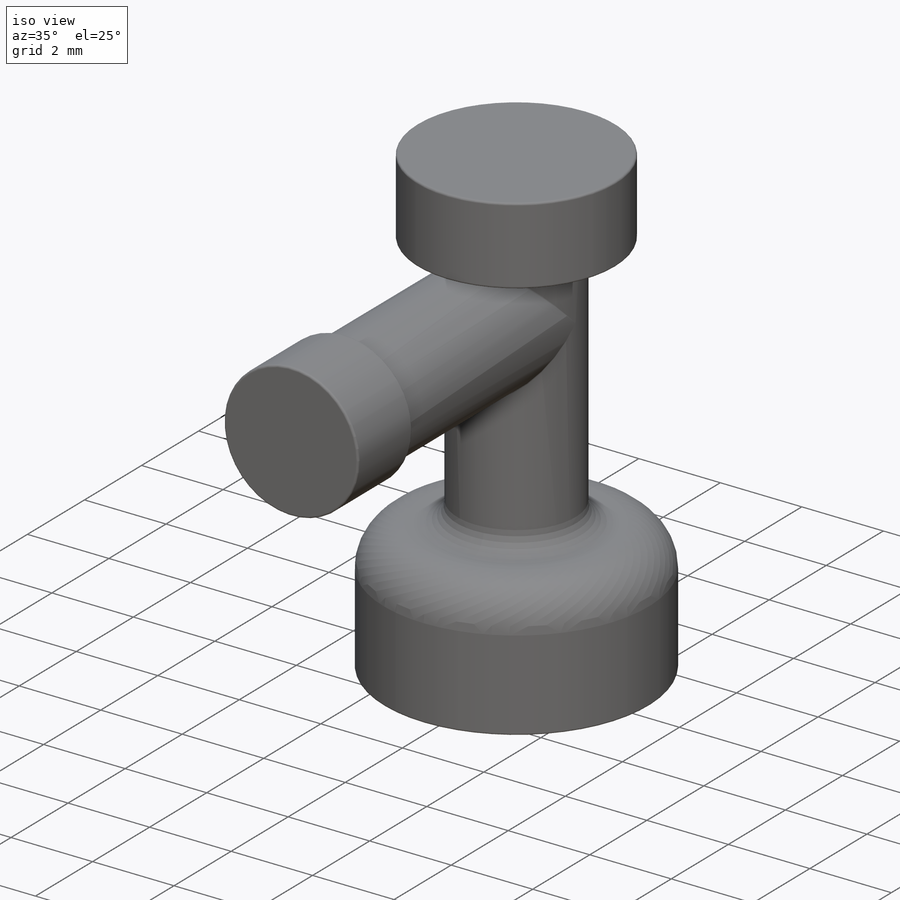
[diagram: iso view]
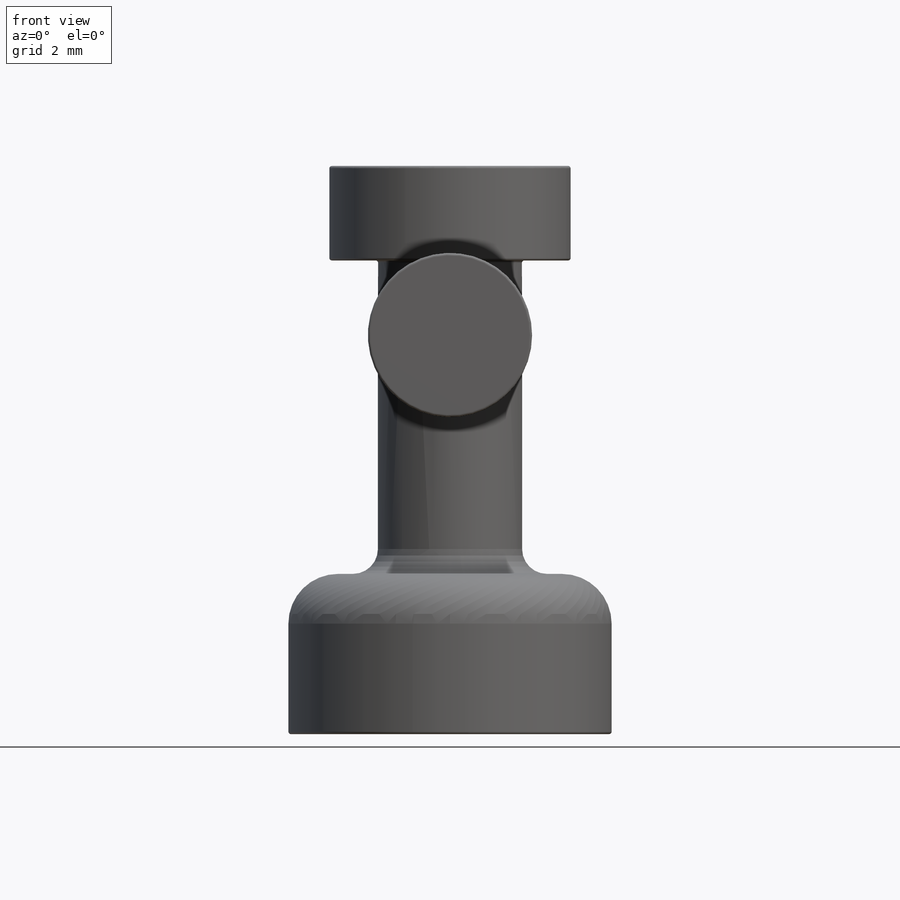
[diagram: front view]
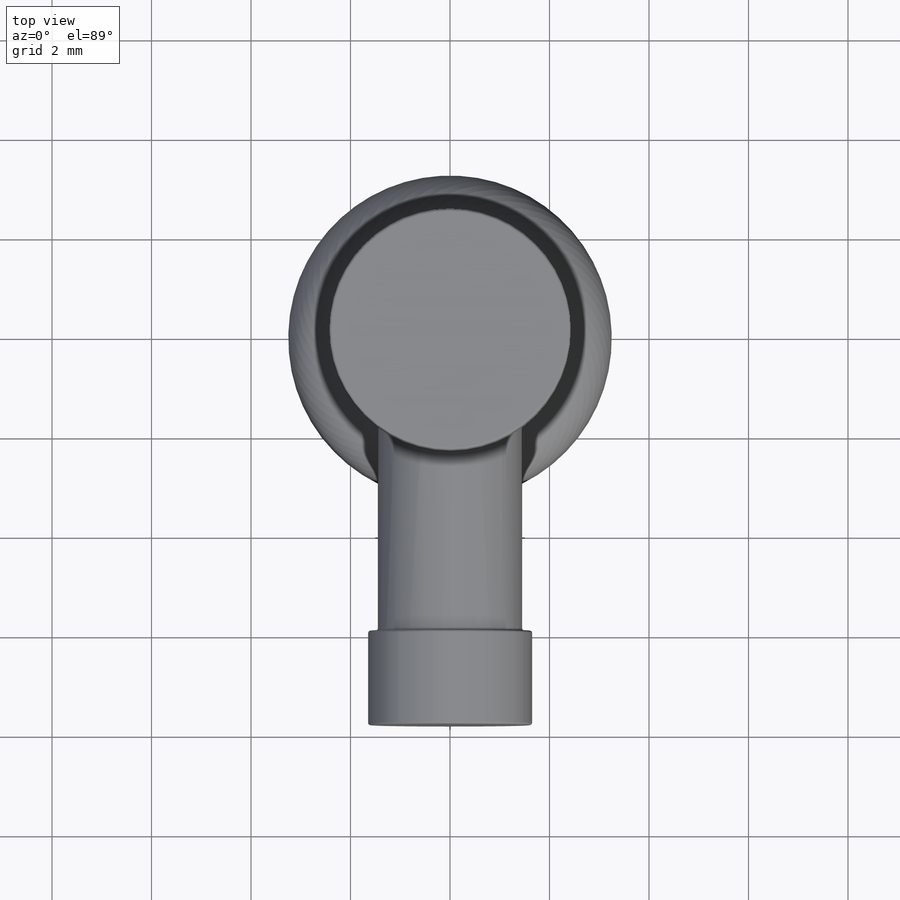
[diagram: top view]
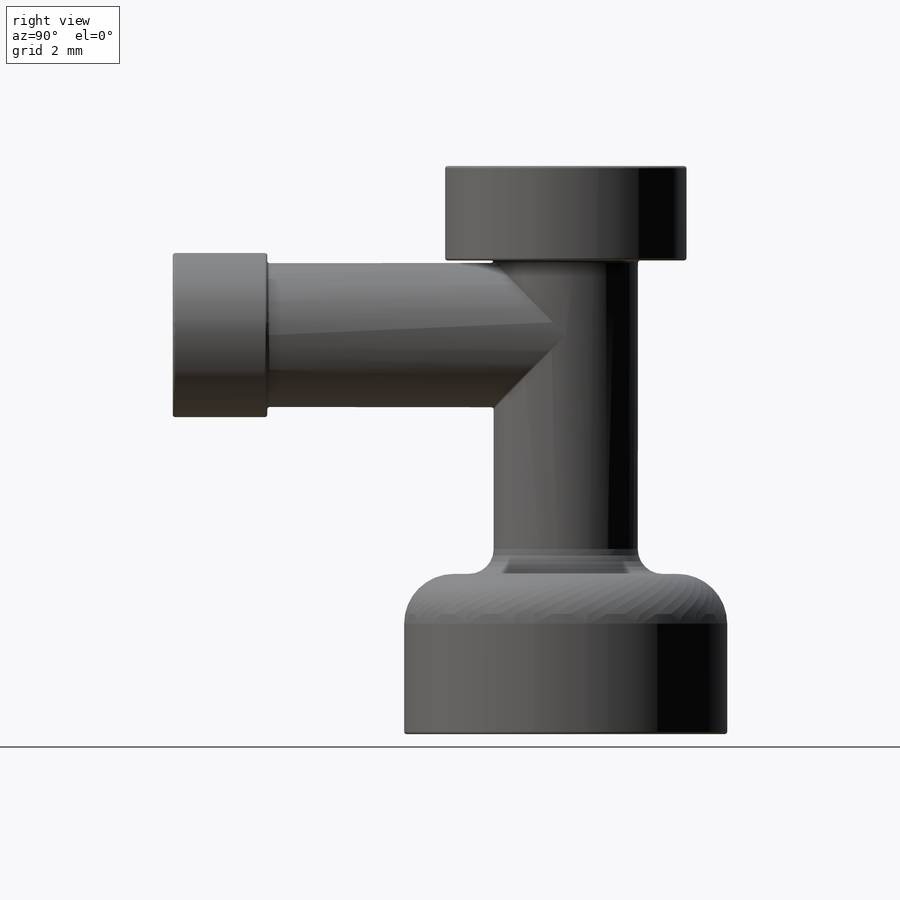
[diagram: right view]
SOLIDWORKS PART (.sldprt)
format: sldprt  version: not decoded by parser v0  size: 366,080 bytes
history: native  units: mm
features: sketch x5, extrude x5, fillet x3, material x1, shell x1 (+14 scaffold rows collapsed)
feature tree (29):
  scaffold x14  (default folders/planes/origin — collapsed)
  material  "Grey"
  sketch  "Sketch1"  dims[D2=6.5mm D1=7.96mm]
  extrude  "Extrude1"  Depth=3.22mm
  sketch  "Sketch2"  dims[D1=2.9mm]
  extrude  "Extrude2"  Depth=6.3mm
  sketch  "Sketch3"  dims[D1=4.85mm]
  extrude  "Extrude3"  Depth=1.9mm
  sketch  "Sketch7"  dims[D1=1.5mm]
  extrude  "Extrude7"  Depth=6mm
  sketch  "Sketch8"  dims[D1=0.2mm]
  extrude  "Extrude8"  Depth=1.9mm
  fillet  "Fillet1"  Radius=1mm
  fillet  "Fillet2"  Radius=0.5mm
  shell  "Shell1"  Thickness=0.9mm
  fillet  "Fillet3"  Radius=0.05mm
decode coverage: 14 of 14 modeling features carry decoded parameters
note: suppression state not decoded; provenance and decode notes live in map.json
